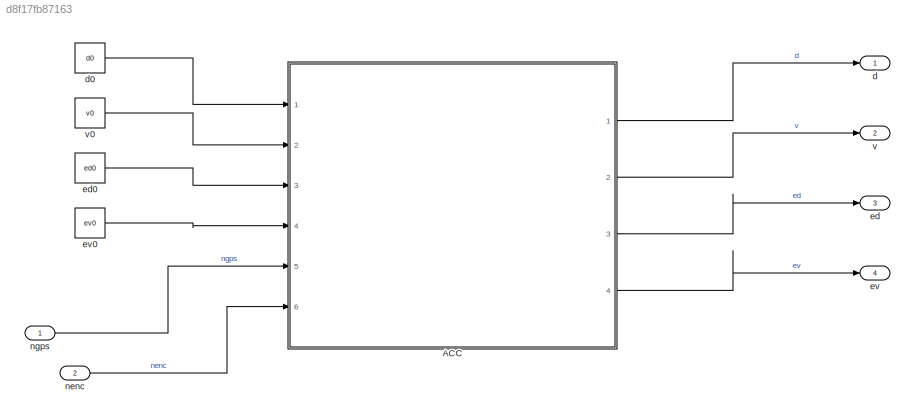
MODEL slx_d8f17fb87163
KIND model
CONFIG AbsTol = auto
CONFIG EnableMultiTasking = off
CONFIG FixedStep = auto
CONFIG MaxStep = auto
CONFIG MinStep = auto
CONFIG RelTol = 1e-3
CONFIG SampleTimeConstraint = Unconstrained
CONFIG Solver = VariableStepAuto
CONFIG SolverName = VariableStepAuto
CONFIG StartTime = 0.0
CONFIG StopTime = tspan(end)
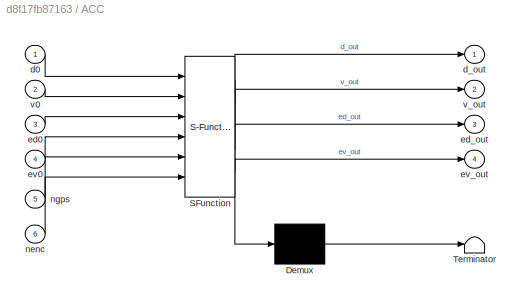
BLOCK [SubSystem] ACC
  ErrorFcn = Stateflow.Translate.translate
  PermitHierarchicalResolution = ExplicitOnly
  Ports = [6, 4]
  RequestExecContextInheritance = off
  SFBlockType = Chart
  TreatAsAtomicUnit = on
  Variant = off
BLOCK [Demux] ACC/ Demux 
  Outputs = 1
  Ports = [1, 1]
BLOCK [S-Function] ACC/ SFunction 
  EnableBusSupport = on
  FunctionName = sf_sfun
  Parameters = nrad,vl
  PortCounts = [6 5]
  Ports = [6, 5]
  SFcnIsStateOwnerBlock = off
  SFunctionDeploymentMode = off
  Tag = Stateflow S-Function partial_acc_model_resilient_breach 3
BLOCK [Terminator] ACC/ Terminator 
BLOCK [Inport] ACC/d0
  IconDisplay = Port number
BLOCK [Outport] ACC/d_out
  IconDisplay = Port number
BLOCK [Inport] ACC/ed0
  IconDisplay = Port number
  Port = 3
BLOCK [Outport] ACC/ed_out
  IconDisplay = Port number
  Port = 3
BLOCK [Inport] ACC/ev0
  IconDisplay = Port number
  Port = 4
BLOCK [Outport] ACC/ev_out
  IconDisplay = Port number
  Port = 4
BLOCK [Inport] ACC/nenc
  IconDisplay = Port number
  Port = 6
BLOCK [Inport] ACC/ngps
  IconDisplay = Port number
  Port = 5
BLOCK [Inport] ACC/v0
  IconDisplay = Port number
  Port = 2
BLOCK [Outport] ACC/v_out
  IconDisplay = Port number
  Port = 2
BLOCK [Outport] d
  IconDisplay = Port number
BLOCK [Constant] d0
  Value = d0
BLOCK [Outport] ed
  IconDisplay = Port number
  Port = 3
BLOCK [Constant] ed0
  Value = ed0
BLOCK [Outport] ev
  IconDisplay = Port number
  Port = 4
BLOCK [Constant] ev0
  Value = ev0
BLOCK [Inport] nenc
  IconDisplay = Port number
  Port = 2
BLOCK [Inport] ngps
  IconDisplay = Port number
BLOCK [Outport] v
  IconDisplay = Port number
  Port = 2
BLOCK [Constant] v0
  Value = v0
LINE ACC:1 -> d:1
LINE ACC:2 -> v:1
LINE ACC:3 -> ed:1
LINE ACC:4 -> ev:1
LINE d0:1 -> ACC:1
LINE ed0:1 -> ACC:3
LINE ev0:1 -> ACC:4
LINE nenc:1 -> ACC:6
LINE ngps:1 -> ACC:5
LINE v0:1 -> ACC:2
CHART ACC states=4 transitions=9
  STATE_LABEL 'Spacing_Control\ndu:\nd_dot = -v+vl;\nv_dot = 0.25*d - 2*v - 0.25*ed + ev - 0.25*(10 + 2*(v-ev))+2*vl;\ned_dot = -10*ed - ev + nrad;\nev_dot = -2*ev+0.5*(ngps + nenc);\nd_out = d;\nv_out = v;\ned_out = ed;\nev_out = ev;'
  STATE_LABEL 'Speed_Control\ndu:\nd_dot = -v+vl;\nv_dot = -2*v+ev+2*vl;\ned_dot = -10*ed - ev + nrad;\nev_dot = -2*ev+0.5*(ngps + nenc);\nd_out = d;\nv_out = v;\ned_out = ed;\nev_out = ev;'
  STATE_LABEL 'Spacing_Control_Resilient\ndu:\nd_dot = -v+vl;\nv_dot = 0.25*d - 2*v - 0.25*ed + ev - 0.25*(10 + 2*(v-ev))+2*vl;\ned_dot = -10*ed - ev + nrad;\nev_dot = -2*ev+0.5*(0 + 0);\nd_out = d;\nv_out = v;\ned_out = ed;\nev_out = ev;'
  STATE_LABEL 'Speed_Control_Resilient\ndu:\nd_dot = -v+vl;\nv_dot = -2*v+ev+2*vl;\ned_dot = -10*ed - ev + nrad;\nev_dot = -2*ev+0.5*(0 + 0);\nd_out = d;\nv_out = v;\ned_out = ed;\nev_out = ev;'
